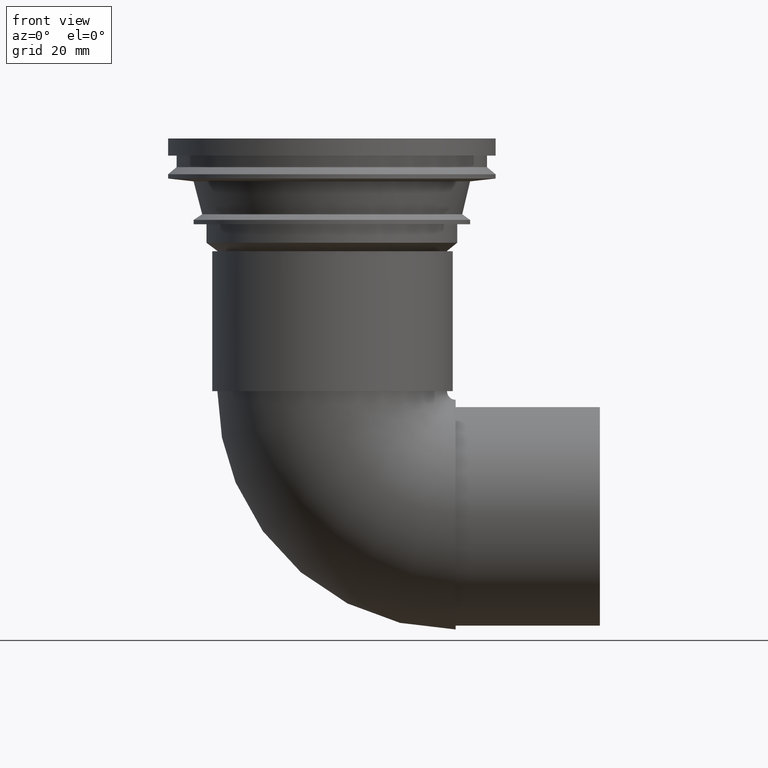
[diagram: clean part render]
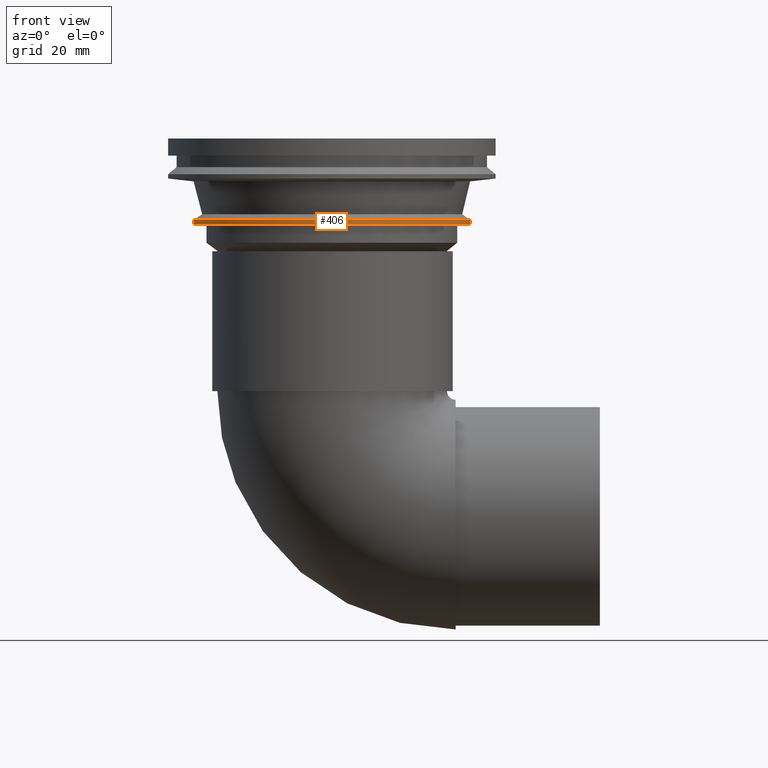
[diagram: same view with one face highlighted and labeled with its STEP entity id]
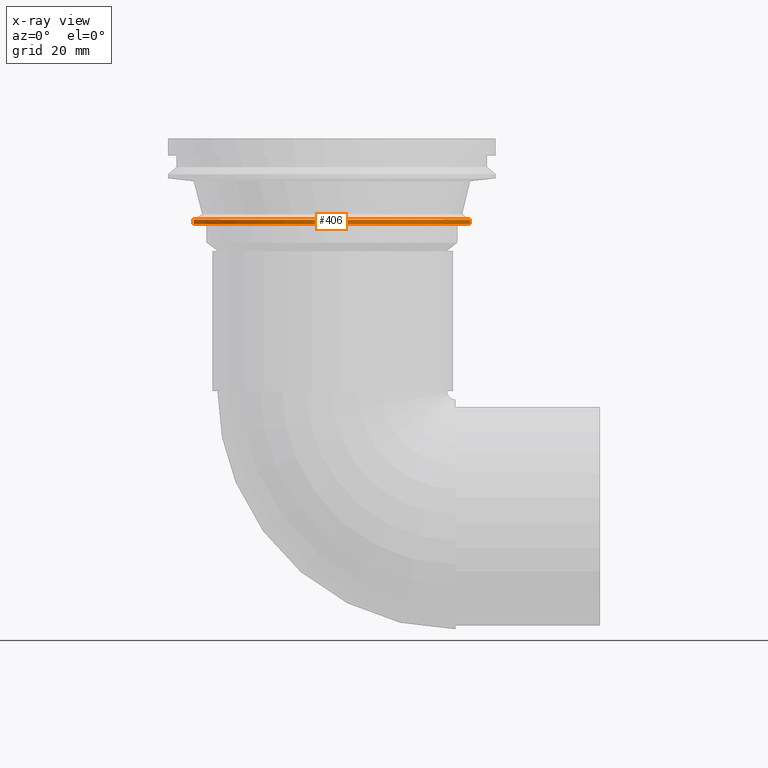
[diagram: x-ray of the same camera — body ghosted, the highlighted face saturated]
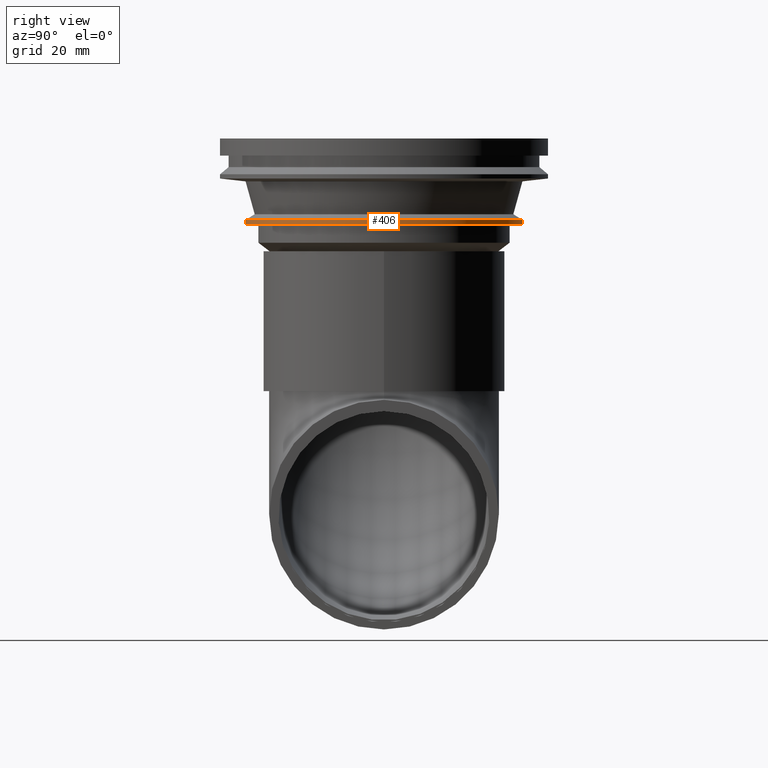
[diagram: same view with one face highlighted and labeled with its STEP entity id]
A machine part, front view. The second image highlights one B-rep face of the part: STEP entity #406.
The next image is the same camera in x-ray: the body ghosted, the highlighted face saturated — about 0% of this face is hidden behind the body in this view.
A second angle (right view) of the same face is appended — the face is thin or edge-on in the first view.
In plain terms, the highlighted cylindrical surface (bore or boss wall) has radius 48.556 mm, axis along (0, 0, -1).
Its self-contained STEP definition (entity closure, byte-faithful):
#34=CYLINDRICAL_SURFACE('',#476,48.556);
#76=ORIENTED_EDGE('',*,*,#138,.T.);
#77=ORIENTED_EDGE('',*,*,#137,.F.);
#137=EDGE_CURVE('',#175,#175,#211,.T.);
#138=EDGE_CURVE('',#176,#176,#212,.T.);
#175=VERTEX_POINT('',#723);
#176=VERTEX_POINT('',#726);
#211=CIRCLE('',#475,48.556);
#212=CIRCLE('',#477,48.556);
#263=EDGE_LOOP('',(#76));
#264=EDGE_LOOP('',(#77));
#335=FACE_BOUND('',#263,.T.);
#336=FACE_BOUND('',#264,.T.);
#406=ADVANCED_FACE('',(#335,#336),#34,.T.);
#475=AXIS2_PLACEMENT_3D('',#722,#588,#589);
#476=AXIS2_PLACEMENT_3D('',#724,#590,#591);
#477=AXIS2_PLACEMENT_3D('',#725,#592,#593);
#588=DIRECTION('',(0.,0.,-1.));
#589=DIRECTION('',(-1.,0.,0.));
#590=DIRECTION('',(0.,0.,-1.));
#591=DIRECTION('',(-1.,0.,0.));
#592=DIRECTION('',(0.,0.,-1.));
#593=DIRECTION('',(-1.,0.,0.));
#722=CARTESIAN_POINT('',(0.,0.,-30.));
#723=CARTESIAN_POINT('',(-48.556,0.,-30.));
#724=CARTESIAN_POINT('',(0.,0.,-5.));
#725=CARTESIAN_POINT('',(0.,0.,-28.5));
#726=CARTESIAN_POINT('',(-48.556,0.,-28.5));